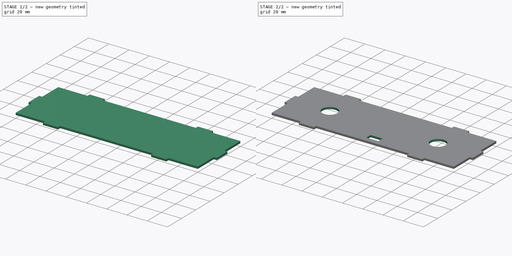
[diagram: build sequence overview — one tinted view per stage of 2, left to right]
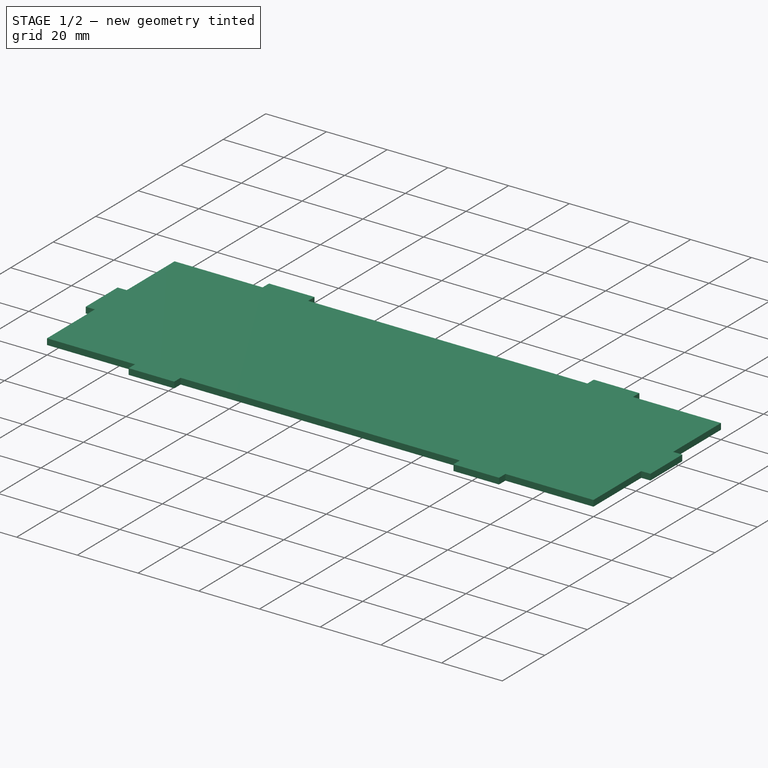
[diagram: stage 1 of 2 — iso view after this stage's code; geometry added in this stage tinted green]
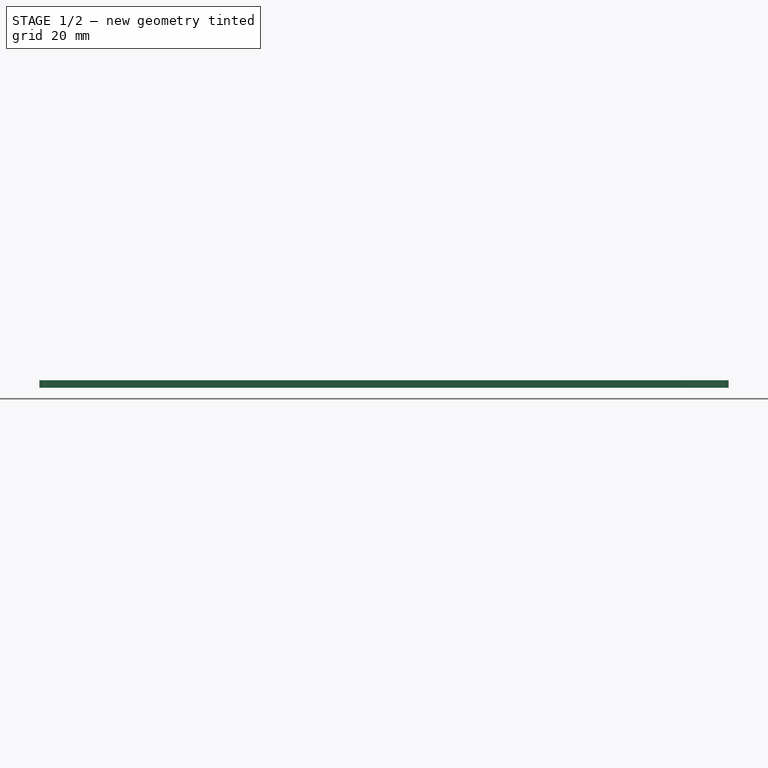
[diagram: stage 1 of 2 — front view after this stage's code; geometry added in this stage tinted green]
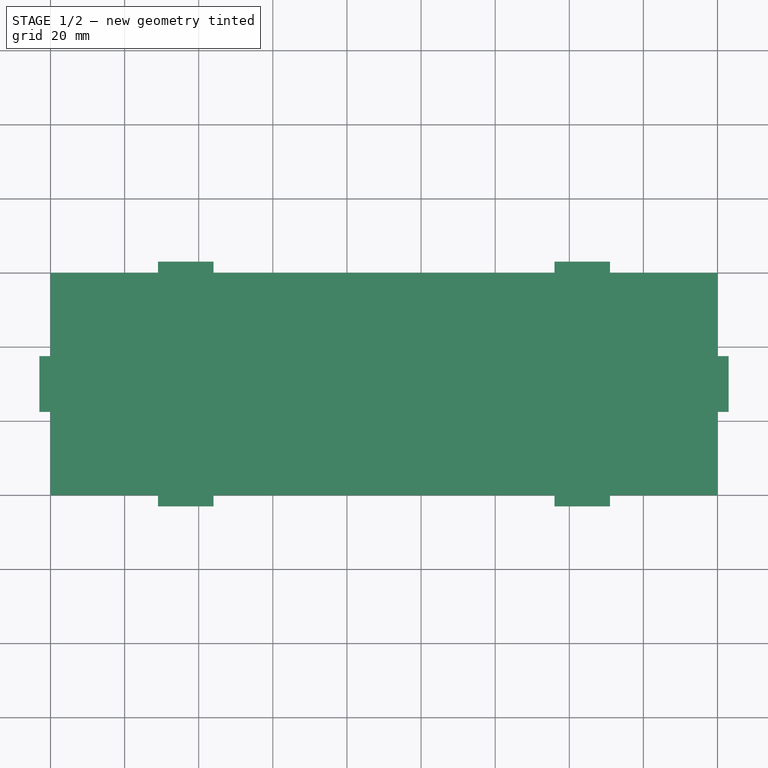
[diagram: stage 1 of 2 — top view after this stage's code; geometry added in this stage tinted green]
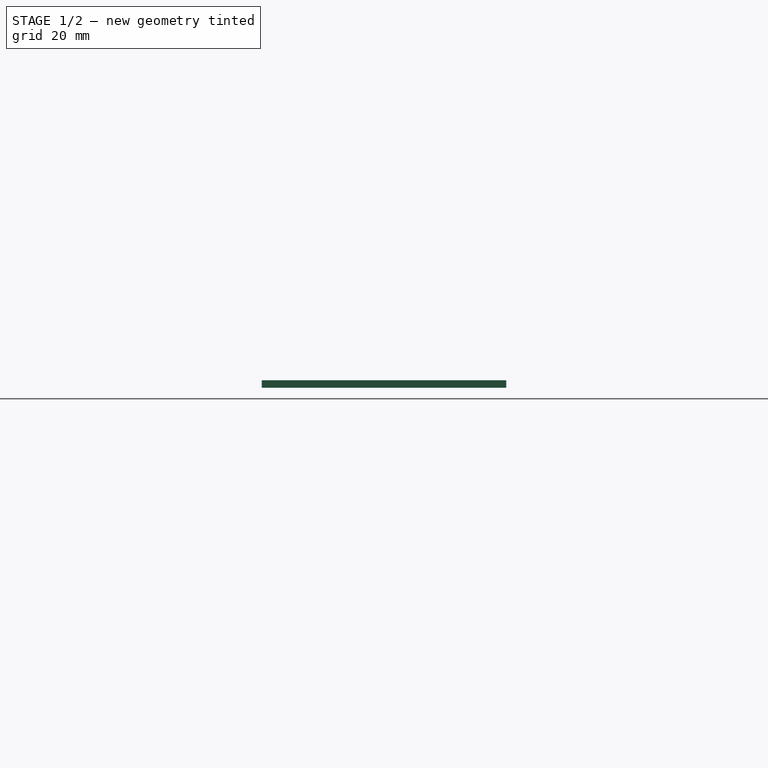
[diagram: stage 1 of 2 — right view after this stage's code; geometry added in this stage tinted green]
FCSTD DOCUMENT  (FreeCAD 1.0R39109 (Git))
Label: aimiya_bt_spk_back
License: All rights reserved
LicenseURL: https://en.wikipedia.org/wiki/All_rights_reserved
objects: Sketcher::SketchObject×2, PartDesign::Pad×1, PartDesign::Pocket×1, PartDesign::Body×1
note: 11 computed .brp shape members not serialized (recipe doc carries the construction recipe); baked Part::Feature solids carry a one-line shape summary decoded from their .brp

FEATURE [Sketcher::SketchObject] Sketch  label="holes"
  ArcFitTolerance = 1e-06
  AttachmentSupport = -> [XY_Plane001]
  FullyConstrained = true
  MakeInternals = false
  MapMode = 5
  sketch-geometry (15):
    g0: LineSegment [constr] StartX=0 StartY=0 StartZ=0 EndX=180 EndY=0 EndZ=0
    g1: LineSegment [constr] StartX=180 StartY=0 StartZ=0 EndX=180 EndY=60 EndZ=0
    g2: LineSegment [constr] StartX=180 StartY=60 StartZ=0 EndX=0 EndY=60 EndZ=0
    g3: LineSegment [constr] StartX=0 StartY=60 StartZ=0 EndX=0 EndY=0 EndZ=0
    g4: LineSegment [constr] StartX=0 StartY=30 StartZ=0 EndX=180 EndY=30 EndZ=0
    g5: LineSegment [constr] StartX=90 StartY=60 StartZ=0 EndX=90 EndY=0 EndZ=0
    g6: GeomPoint [constr] X=90 Y=30 Z=0
    g7: GeomPoint [constr] X=36.5 Y=30 Z=0
    g8: Circle CenterX=36.5 CenterY=30 CenterZ=0 NormalX=0 NormalY=0 NormalZ=1 AngleXU=0 Radius=7.5
    g9: Circle CenterX=143.5 CenterY=30 CenterZ=0 NormalX=0 NormalY=0 NormalZ=1 AngleXU=0 Radius=7.5
    g10: GeomPoint [constr] X=102 Y=5 Z=0
    g11: LineSegment StartX=102 StartY=5 StartZ=0 EndX=102 EndY=11 EndZ=0
    g12: LineSegment StartX=102 StartY=11 StartZ=0 EndX=90 EndY=11 EndZ=0
    g13: LineSegment StartX=90 StartY=11 StartZ=0 EndX=90 EndY=5 EndZ=0
    g14: LineSegment StartX=90 StartY=5 StartZ=0 EndX=102 EndY=5 EndZ=0
  constraints (35):
    c: Coincident(g0,g1)
    c: Coincident(g1,g2)
    c: Coincident(g2,g3)
    c: Coincident(g3,g0)
    c: Horizontal(g0)
    c: Horizontal(g2)
    c: Vertical(g1)
    c: Vertical(g3)
    c: Coincident(g0,g-1)
    c: DistanceX(g0,g0) = 180
    c: DistanceY(g3,g3) = 60
    c: Symmetric(g3,g3,g4)
    c: Symmetric(g1,g1,g4)
    c: Symmetric(g2,g2,g5)
    c: Symmetric(g0,g0,g5)
    c: Symmetric(g4,g4,g6)
    c: PointOnObject(g7,g4)
    c: DistanceX(g7,g6) = 53.5
    c: Diameter(g8) = 15
    c: Coincident(g8,g7)
    c: Equal(g8,g9)
    c: Symmetric(g8,g9,g5)
    c: Distance(g10,g0) = 5
    c: Distance(g10,g5) = 12
    c: Coincident(g11,g12)
    c: Coincident(g12,g13)
    c: Coincident(g13,g14)
    c: Coincident(g14,g11)
    c: Vertical(g11)
    c: Vertical(g13)
    c: Horizontal(g12)
    c: Horizontal(g14)
    c: Distance(g12,g14) = 6
    c: Coincident(g11,g10)
    c: PointOnObject(g12,g5)
FEATURE [Sketcher::SketchObject] Sketch001
  ArcFitTolerance = 1e-06
  AttachmentSupport = -> [XY_Plane001]
  FullyConstrained = true
  MakeInternals = false
  MapMode = 5
  sketch-geometry (33):
    g0: LineSegment StartX=0 StartY=0 StartZ=0 EndX=180 EndY=0 EndZ=0
    g1: LineSegment StartX=180 StartY=0 StartZ=0 EndX=180 EndY=60 EndZ=0
    g2: LineSegment StartX=180 StartY=60 StartZ=0 EndX=0 EndY=60 EndZ=0
    g3: LineSegment StartX=0 StartY=60 StartZ=0 EndX=0 EndY=0 EndZ=0
    g4: LineSegment [constr] StartX=0 StartY=30 StartZ=0 EndX=180 EndY=30 EndZ=0
    g5: LineSegment [constr] StartX=90 StartY=60 StartZ=0 EndX=90 EndY=0 EndZ=0
    g6: LineSegment [constr] StartX=36.5 StartY=60 StartZ=0 EndX=36.5 EndY=0 EndZ=0
    g7: LineSegment StartX=29 StartY=60 StartZ=0 EndX=29 EndY=63 EndZ=0
    g8: LineSegment StartX=29 StartY=63 StartZ=0 EndX=44 EndY=63 EndZ=0
    g9: LineSegment StartX=44 StartY=60 StartZ=0 EndX=44 EndY=63 EndZ=0
    g10: LineSegment StartX=29 StartY=60 StartZ=0 EndX=44 EndY=60 EndZ=0
    g11: LineSegment [constr] StartX=36.5 StartY=63 StartZ=0 EndX=36.5 EndY=60 EndZ=0
    g12: LineSegment StartX=29 StartY=3e-16 StartZ=0 EndX=29 EndY=-3 EndZ=0
    g13: LineSegment StartX=29 StartY=-3 StartZ=0 EndX=44 EndY=-3 EndZ=0
    g14: LineSegment StartX=44 StartY=-5.5e-15 StartZ=0 EndX=44 EndY=-3 EndZ=0
    g15: LineSegment StartX=29 StartY=3e-16 StartZ=0 EndX=44 EndY=-5.5e-15 EndZ=0
    g16: LineSegment StartX=151 StartY=60 StartZ=0 EndX=151 EndY=63 EndZ=0
    g17: LineSegment StartX=151 StartY=63 StartZ=0 EndX=136 EndY=63 EndZ=0
    g18: LineSegment StartX=136 StartY=60 StartZ=0 EndX=136 EndY=63 EndZ=0
    g19: LineSegment StartX=151 StartY=60 StartZ=0 EndX=136 EndY=60 EndZ=0
    g20: LineSegment StartX=151 StartY=3e-16 StartZ=0 EndX=151 EndY=-3 EndZ=0
    g21: LineSegment StartX=151 StartY=-3 StartZ=0 EndX=136 EndY=-3 EndZ=0
    g22: LineSegment StartX=136 StartY=-5.5e-15 StartZ=0 EndX=136 EndY=-3 EndZ=0
    g23: LineSegment StartX=151 StartY=3e-16 StartZ=0 EndX=136 EndY=-5.5e-15 EndZ=0
    g24: LineSegment StartX=0 StartY=37.5 StartZ=0 EndX=-3 EndY=37.5 EndZ=0
    g25: LineSegment StartX=-3 StartY=37.5 StartZ=0 EndX=-3 EndY=22.5 EndZ=0
    g26: LineSegment StartX=-3 StartY=22.5 StartZ=0 EndX=0 EndY=22.5 EndZ=0
    g27: LineSegment [constr] StartX=-3 StartY=30 StartZ=0 EndX=0 EndY=30 EndZ=0
    g28: LineSegment StartX=0 StartY=37.5 StartZ=0 EndX=0 EndY=22.5 EndZ=0
    g29: LineSegment StartX=180 StartY=37.5 StartZ=0 EndX=183 EndY=37.5 EndZ=0
    g30: LineSegment StartX=183 StartY=37.5 StartZ=0 EndX=183 EndY=22.5 EndZ=0
    g31: LineSegment StartX=183 StartY=22.5 StartZ=0 EndX=180 EndY=22.5 EndZ=0
    g32: LineSegment StartX=180 StartY=37.5 StartZ=0 EndX=180 EndY=22.5 EndZ=0
  constraints (79):
    c: Coincident(g0,g1)
    c: Coincident(g1,g2)
    c: Coincident(g2,g3)
    c: Coincident(g3,g0)
    c: Horizontal(g0)
    c: Horizontal(g2)
    c: Vertical(g1)
    c: Vertical(g3)
    c: Distance(g1,g3) = 180
    c: Distance(g0,g2) = 60
    c: Coincident(g0,g-1)
    c: Symmetric(g3,g3,g4)
    c: Symmetric(g1,g1,g4)
    c: Symmetric(g2,g2,g5)
    c: Symmetric(g0,g0,g5)
    c: PointOnObject(g6,g2)
    c: PointOnObject(g6,g0)
    c: Vertical(g6)
    c: Distance(g5,g6) = 53.5
    c: Distance(g7) = 3
    c: Vertical(g7)
    c: PointOnObject(g7,g2)
    c: Distance(g8) = 15
    c: Horizontal(g8)
    c: Coincident(g8,g7)
    c: Distance(g9) = 3
    c: Vertical(g9)
    c: Coincident(g8,g9)
    c: Coincident(g10,g7)
    c: Coincident(g10,g9)
    c: Vertical(g11)
    c: Symmetric(g8,g8,g11)
    c: Coincident(g11,g6)
    c: Symmetric(g7,g12,g4)
    c: Symmetric(g7,g12,g4)
    c: Symmetric(g8,g13,g4)
    c: Symmetric(g8,g13,g4)
    c: Symmetric(g9,g14,g4)
    c: Symmetric(g9,g14,g4)
    c: Symmetric(g10,g15,g4)
    c: Symmetric(g10,g15,g4)
    c: Symmetric(g7,g16,g5)
    c: Symmetric(g7,g16,g5)
    c: Symmetric(g8,g17,g5)
    c: Symmetric(g8,g17,g5)
    c: Symmetric(g9,g18,g5)
    c: Symmetric(g9,g18,g5)
    c: Symmetric(g10,g19,g5)
    c: Symmetric(g10,g19,g5)
    c: Symmetric(g12,g20,g5)
    c: Symmetric(g12,g20,g5)
    c: Symmetric(g13,g21,g5)
    c: Symmetric(g13,g21,g5)
    c: Symmetric(g14,g22,g5)
    c: Symmetric(g14,g22,g5)
    c: Symmetric(g15,g23,g5)
    c: Symmetric(g15,g23,g5)
    c: Distance(g24) = 3
    c: Horizontal(g24)
    c: PointOnObject(g24,g3)
    c: Distance(g25) = 15
    c: Vertical(g25)
    c: Coincident(g25,g24)
    c: Horizontal(g26)
    c: Coincident(g26,g25)
    c: PointOnObject(g26,g3)
    c: Horizontal(g27)
    c: Symmetric(g25,g25,g27)
    c: Coincident(g27,g4)
    c: Coincident(g28,g24)
    c: Coincident(g28,g26)
    c: Symmetric(g24,g29,g5)
    c: Symmetric(g24,g29,g5)
    c: Symmetric(g25,g30,g5)
    c: Symmetric(g25,g30,g5)
    c: Symmetric(g26,g31,g5)
    c: Symmetric(g26,g31,g5)
    c: Symmetric(g28,g32,g5)
    c: Symmetric(g28,g32,g5)
FEATURE [PartDesign::Pad] Pad
  Direction = (0,0,1)
  Length = 2
  Length2 = 10
  Profile = -> Sketch001
  ReferenceAxis = -> Sketch001 [N_Axis]
  Refine = true
  Suppressed = false
  Type = 0
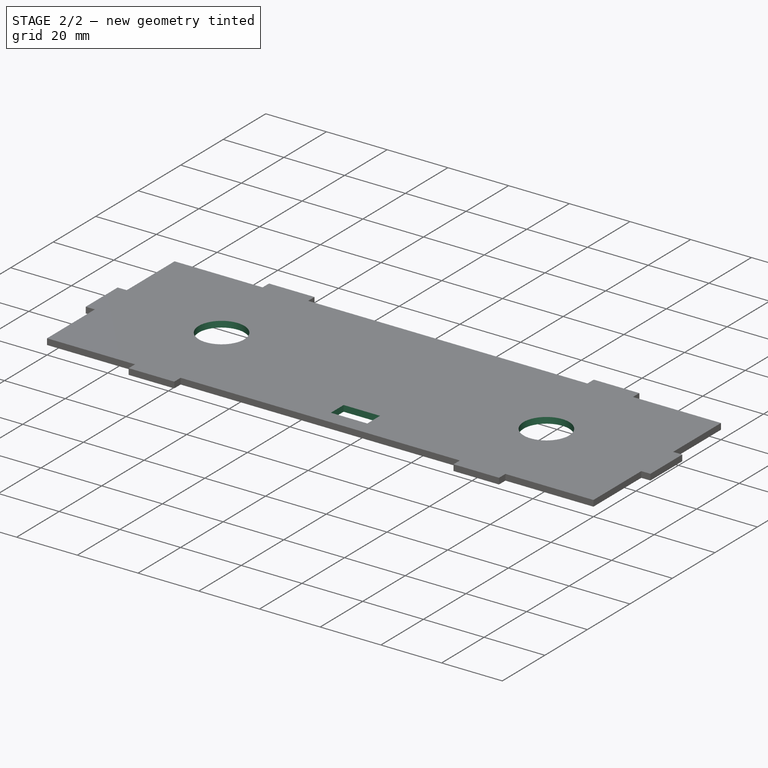
[diagram: stage 2 of 2 — iso view after this stage's code; geometry added in this stage tinted green]
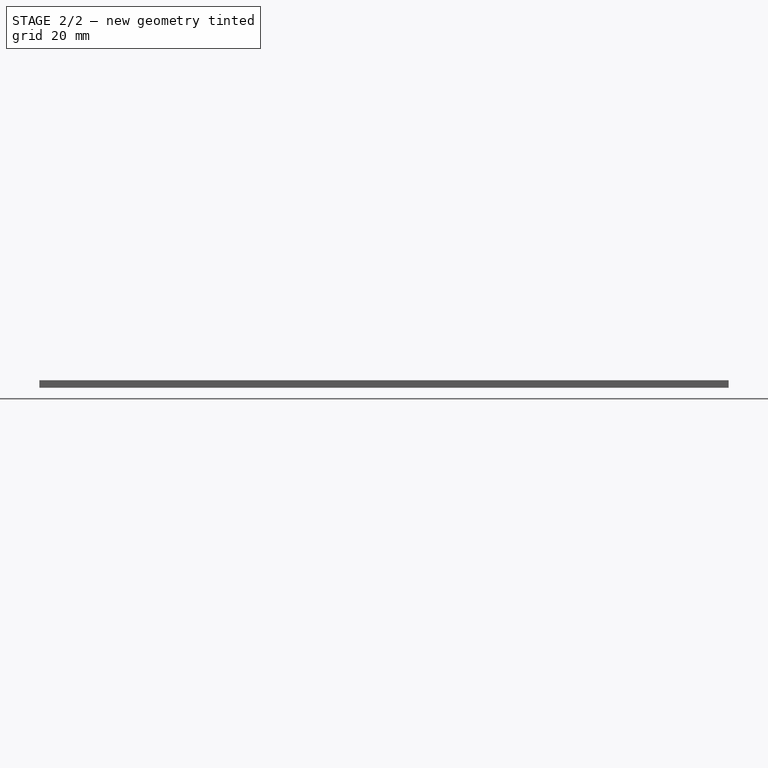
[diagram: stage 2 of 2 — front view after this stage's code; geometry added in this stage tinted green]
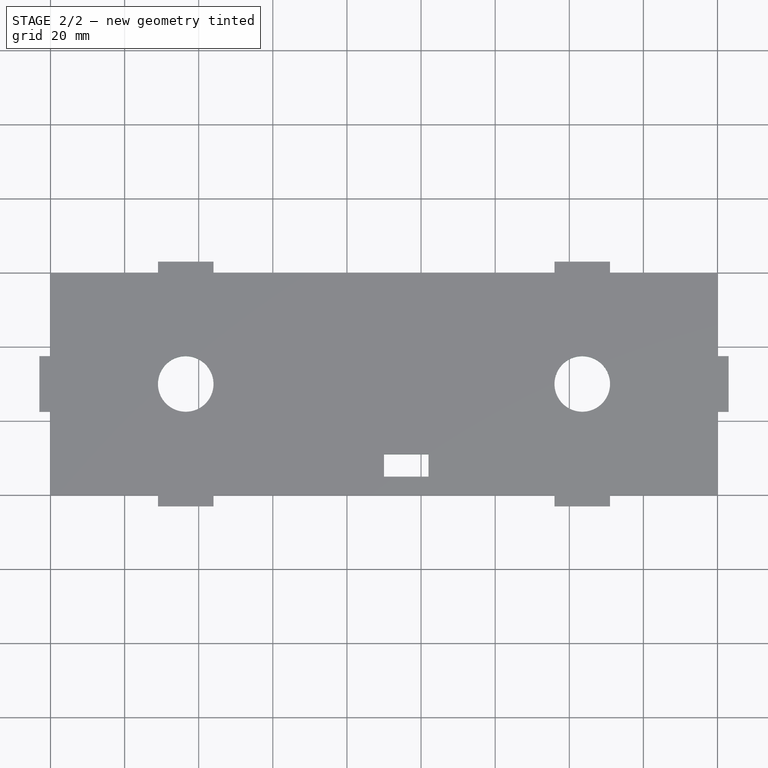
[diagram: stage 2 of 2 — top view after this stage's code; geometry added in this stage tinted green]
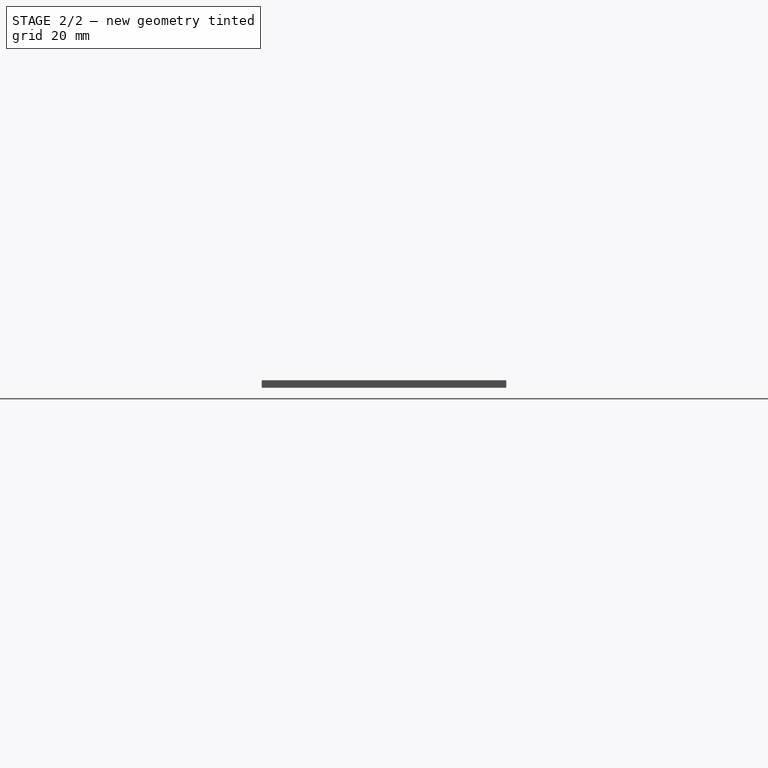
[diagram: stage 2 of 2 — right view after this stage's code; geometry added in this stage tinted green]
FEATURE [PartDesign::Pocket] Pocket
  BaseFeature = -> Pad
  Direction = (0,0,-1)
  Length = 2
  Length2 = 5
  Profile = -> Sketch
  ReferenceAxis = -> Sketch [N_Axis]
  Refine = true
  Reversed = true
  Suppressed = false
  Type = 0
FEATURE [PartDesign::Body] Body001  label="main"
  AllowCompound = false
  Group = -> [Sketch,Sketch001,Pad,Pocket]
  Origin = -> Origin001
  Tip = -> Pocket
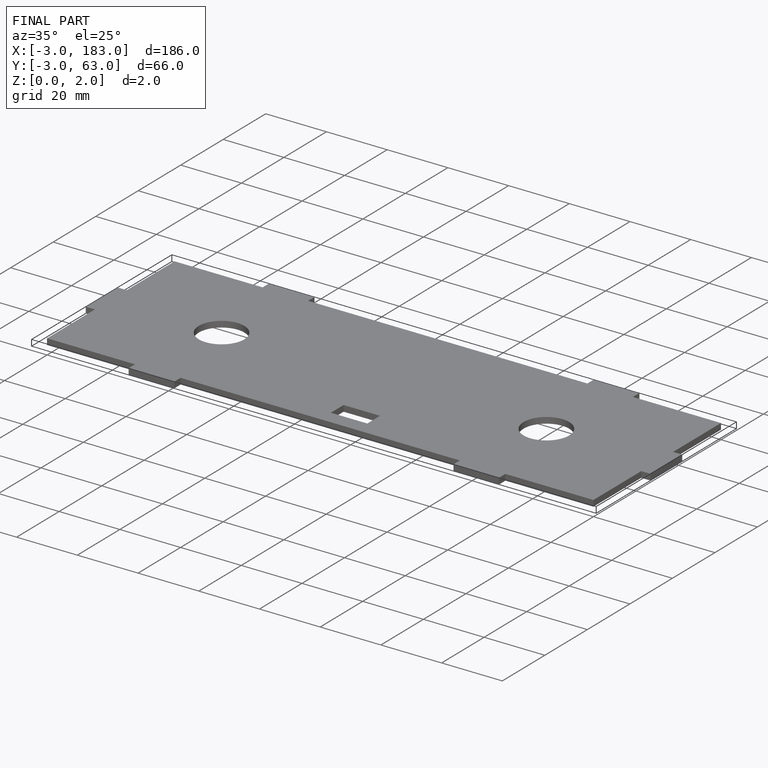
[diagram: finished part — iso view with bounding-box wireframe]
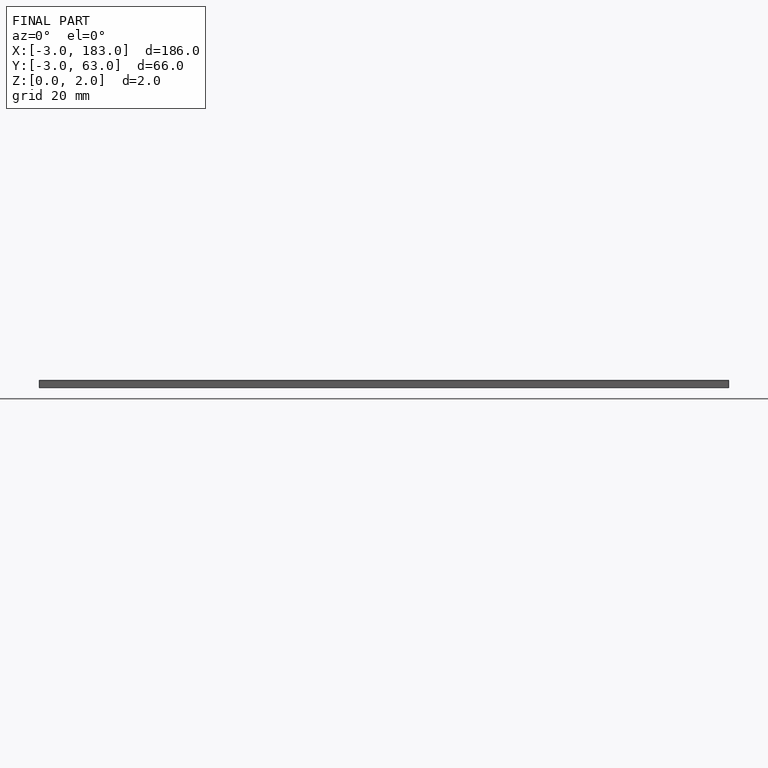
[diagram: finished part — front view with bounding-box wireframe]
